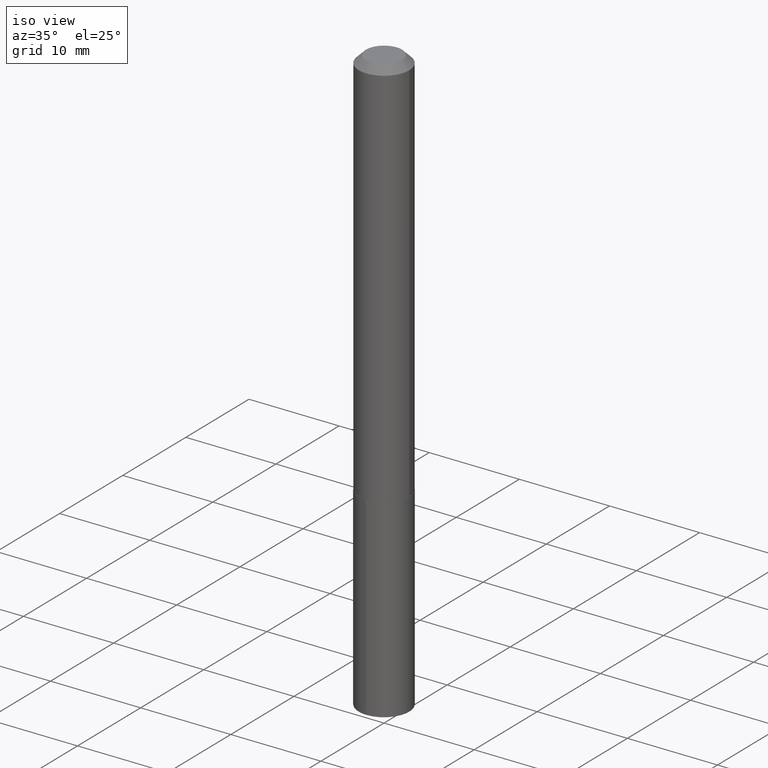
[diagram: clean part render]
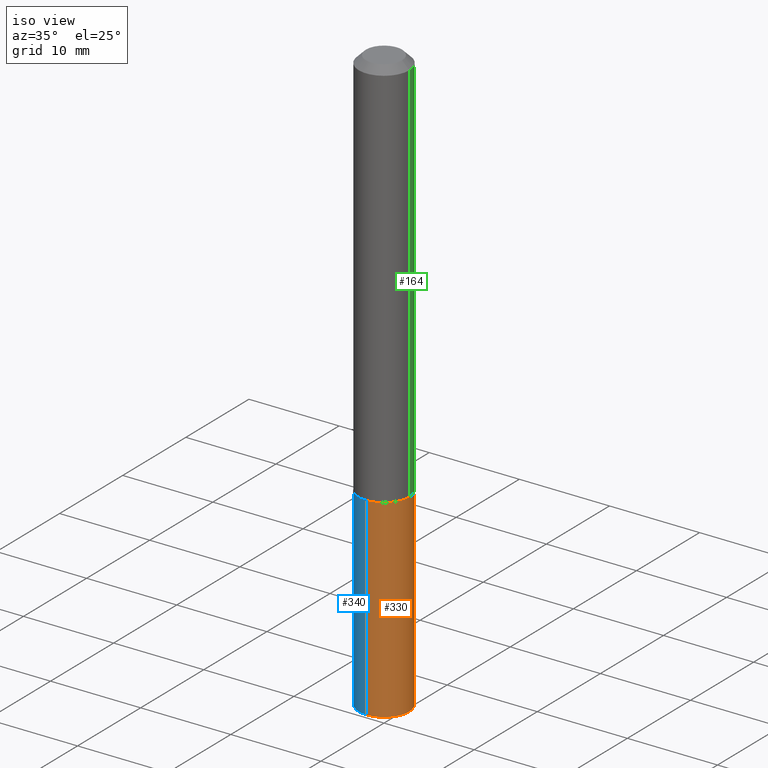
[diagram: same view with three faces highlighted in distinct colors, each labeled with its STEP entity id]
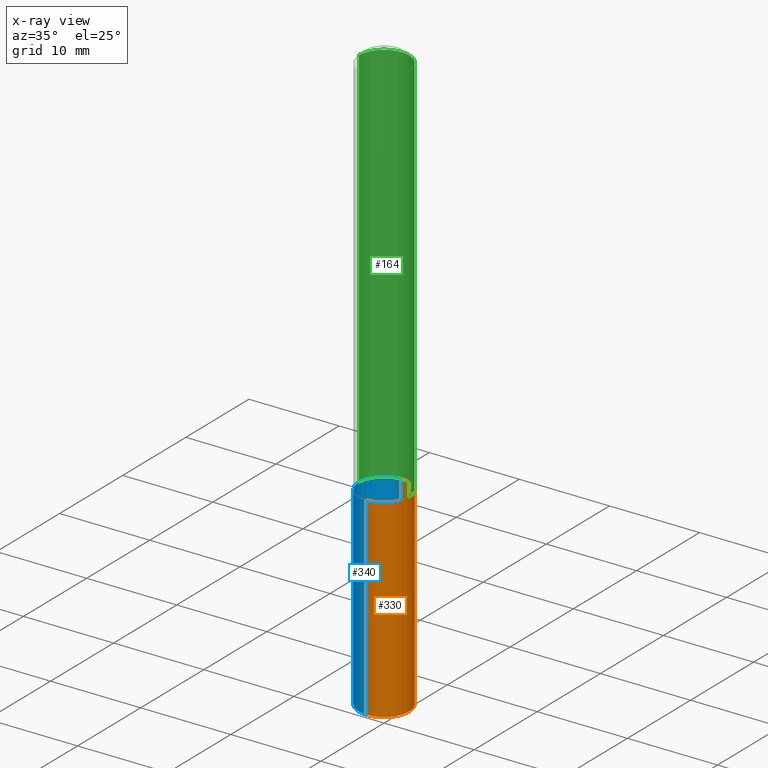
[diagram: x-ray of the same camera — body ghosted, the three highlighted faces saturated]
A machine part, iso view with three faces highlighted in distinct colors.
The next image is the same camera in x-ray (body ghosted, the three faces saturated) — at least one of them is partly hidden behind the body in this view.
Their STEP definitions:

[orange] entity #330 — the highlighted cylindrical surface (edge-blend (fillet) strip) has radius 2.8003 mm, axis along (-0, 0, 1).
#13 = CIRCLE ( 'NONE', #72, 0.1102500000000000008 ) ;
#18 = LINE ( 'NONE', #295, #43 ) ;
#23 = ORIENTED_EDGE ( 'NONE', *, *, #81, .T. ) ;
#25 = EDGE_CURVE ( 'NONE', #80, #269, #97, .T. ) ;
#35 = DIRECTION ( 'NONE',  ( -2.445383881849579817E-29, 3.491602955325256066E-15, 1.000000000000000000 ) ) ;
#40 = VECTOR ( 'NONE', #35, 39.37007874015748143 ) ;
#43 = VECTOR ( 'NONE', #384, 39.37007874015748143 ) ;
#46 = CARTESIAN_POINT ( 'NONE',  ( 7.833733661755731749E-16, 0.1102499999999940195, -1.716500000000000137 ) ) ;
#55 = ORIENTED_EDGE ( 'NONE', *, *, #25, .T. ) ;
#71 = AXIS2_PLACEMENT_3D ( 'NONE', #336, #163, #89 ) ;
#72 = AXIS2_PLACEMENT_3D ( 'NONE', #162, #255, #314 ) ;
#80 = VERTEX_POINT ( 'NONE', #99 ) ;
#81 = EDGE_CURVE ( 'NONE', #269, #356, #188, .T. ) ;
#89 = DIRECTION ( 'NONE',  ( -6.982962677686266711E-15, -1.000000000000000000, 4.955733321839933614E-15 ) ) ;
#97 = CIRCLE ( 'NONE', #71, 0.1102500000000000008 ) ;
#99 = CARTESIAN_POINT ( 'NONE',  ( -7.698716352148479695E-16, -0.1102500000000089381, -2.563638308526090981 ) ) ;
#104 = CARTESIAN_POINT ( 'NONE',  ( 4.197647205816786480E-29, -5.993127718124259199E-15, -1.716499999999999915 ) ) ;
#162 = CARTESIAN_POINT ( 'NONE',  ( 4.197647205816786480E-29, -5.993127718124259199E-15, -1.716499999999999915 ) ) ;
#163 = DIRECTION ( 'NONE',  ( -2.445383881849579817E-29, 3.491602955325256066E-15, 1.000000000000000000 ) ) ;
#188 = LINE ( 'NONE', #191, #40 ) ;
#191 = CARTESIAN_POINT ( 'NONE',  ( 7.833733661755523687E-16, 0.1102499999999940195, -1.716500000000000137 ) ) ;
#203 = DIRECTION ( 'NONE',  ( -2.445383881849579817E-29, 3.491602955325256066E-15, 1.000000000000000000 ) ) ;
#214 = AXIS2_PLACEMENT_3D ( 'NONE', #104, #203, #287 ) ;
#225 = EDGE_CURVE ( 'NONE', #80, #251, #18, .T. ) ;
#251 = VERTEX_POINT ( 'NONE', #258 ) ;
#255 = DIRECTION ( 'NONE',  ( -2.445383881849579817E-29, 3.491602955325256066E-15, 1.000000000000000000 ) ) ;
#258 = CARTESIAN_POINT ( 'NONE',  ( -7.698716352148689729E-16, -0.1102500000000059960, -1.716499999999999471 ) ) ;
#259 = CARTESIAN_POINT ( 'NONE',  ( 7.833733661755730763E-16, 0.1102499999999910357, -2.563638308526091869 ) ) ;
#266 = ORIENTED_EDGE ( 'NONE', *, *, #225, .F. ) ;
#269 = VERTEX_POINT ( 'NONE', #259 ) ;
#271 = ORIENTED_EDGE ( 'NONE', *, *, #324, .F. ) ;
#287 = DIRECTION ( 'NONE',  ( -6.982962677686266711E-15, -1.000000000000000000, 2.477866660919966807E-15 ) ) ;
#295 = CARTESIAN_POINT ( 'NONE',  ( -7.698716352148689729E-16, -0.1102500000000059960, -1.716499999999999471 ) ) ;
#314 = DIRECTION ( 'NONE',  ( -6.982962677686266711E-15, -1.000000000000000000, 2.477866660919966807E-15 ) ) ;
#324 = EDGE_CURVE ( 'NONE', #251, #356, #13, .T. ) ;
#330 = ADVANCED_FACE ( 'NONE', ( #352 ), #350, .T. ) ;
#333 = EDGE_LOOP ( 'NONE', ( #55, #23, #271, #266 ) ) ;
#336 = CARTESIAN_POINT ( 'NONE',  ( 6.269225571183806449E-29, -8.950998339743198170E-15, -2.563638308526091425 ) ) ;
#350 = CYLINDRICAL_SURFACE ( 'NONE', #214, 0.1102500000000000008 ) ;
#352 = FACE_OUTER_BOUND ( 'NONE', #333, .T. ) ;
#356 = VERTEX_POINT ( 'NONE', #46 ) ;
#384 = DIRECTION ( 'NONE',  ( -2.445383881849579817E-29, 3.491602955325256066E-15, 1.000000000000000000 ) ) ;

[blue] entity #340 — the highlighted cylindrical surface (edge-blend (fillet) strip) has radius 2.8003 mm, axis along (-0, 0, 1).
#17 = DIRECTION ( 'NONE',  ( -2.445383881849579817E-29, 3.491602955325256066E-15, 1.000000000000000000 ) ) ;
#18 = LINE ( 'NONE', #295, #43 ) ;
#19 = CARTESIAN_POINT ( 'NONE',  ( 4.197647205816786480E-29, -5.993127718124259199E-15, -1.716499999999999915 ) ) ;
#21 = AXIS2_PLACEMENT_3D ( 'NONE', #19, #17, #133 ) ;
#24 = DIRECTION ( 'NONE',  ( -2.445383881849579817E-29, 3.491602955325256066E-15, 1.000000000000000000 ) ) ;
#35 = DIRECTION ( 'NONE',  ( -2.445383881849579817E-29, 3.491602955325256066E-15, 1.000000000000000000 ) ) ;
#40 = VECTOR ( 'NONE', #35, 39.37007874015748143 ) ;
#43 = VECTOR ( 'NONE', #384, 39.37007874015748143 ) ;
#46 = CARTESIAN_POINT ( 'NONE',  ( 7.833733661755731749E-16, 0.1102499999999940195, -1.716500000000000137 ) ) ;
#77 = CYLINDRICAL_SURFACE ( 'NONE', #110, 0.1102500000000000008 ) ;
#80 = VERTEX_POINT ( 'NONE', #99 ) ;
#81 = EDGE_CURVE ( 'NONE', #269, #356, #188, .T. ) ;
#99 = CARTESIAN_POINT ( 'NONE',  ( -7.698716352148479695E-16, -0.1102500000000089381, -2.563638308526090981 ) ) ;
#110 = AXIS2_PLACEMENT_3D ( 'NONE', #262, #294, #382 ) ;
#111 = ORIENTED_EDGE ( 'NONE', *, *, #81, .F. ) ;
#114 = ORIENTED_EDGE ( 'NONE', *, *, #277, .T. ) ;
#133 = DIRECTION ( 'NONE',  ( -6.982962677686266711E-15, -1.000000000000000000, 2.477866660919966807E-15 ) ) ;
#141 = DIRECTION ( 'NONE',  ( -6.982962677686266711E-15, -1.000000000000000000, 4.955733321839933614E-15 ) ) ;
#188 = LINE ( 'NONE', #191, #40 ) ;
#191 = CARTESIAN_POINT ( 'NONE',  ( 7.833733661755523687E-16, 0.1102499999999940195, -1.716500000000000137 ) ) ;
#206 = EDGE_LOOP ( 'NONE', ( #111, #114, #331, #302 ) ) ;
#225 = EDGE_CURVE ( 'NONE', #80, #251, #18, .T. ) ;
#251 = VERTEX_POINT ( 'NONE', #258 ) ;
#258 = CARTESIAN_POINT ( 'NONE',  ( -7.698716352148689729E-16, -0.1102500000000059960, -1.716499999999999471 ) ) ;
#259 = CARTESIAN_POINT ( 'NONE',  ( 7.833733661755730763E-16, 0.1102499999999910357, -2.563638308526091869 ) ) ;
#262 = CARTESIAN_POINT ( 'NONE',  ( 4.197647205816786480E-29, -5.993127718124259199E-15, -1.716499999999999915 ) ) ;
#268 = AXIS2_PLACEMENT_3D ( 'NONE', #379, #24, #141 ) ;
#269 = VERTEX_POINT ( 'NONE', #259 ) ;
#277 = EDGE_CURVE ( 'NONE', #269, #80, #317, .T. ) ;
#293 = CIRCLE ( 'NONE', #21, 0.1102500000000000008 ) ;
#294 = DIRECTION ( 'NONE',  ( -2.445383881849579817E-29, 3.491602955325256066E-15, 1.000000000000000000 ) ) ;
#295 = CARTESIAN_POINT ( 'NONE',  ( -7.698716352148689729E-16, -0.1102500000000059960, -1.716499999999999471 ) ) ;
#302 = ORIENTED_EDGE ( 'NONE', *, *, #375, .F. ) ;
#317 = CIRCLE ( 'NONE', #268, 0.1102500000000000008 ) ;
#331 = ORIENTED_EDGE ( 'NONE', *, *, #225, .T. ) ;
#340 = ADVANCED_FACE ( 'NONE', ( #377 ), #77, .T. ) ;
#356 = VERTEX_POINT ( 'NONE', #46 ) ;
#375 = EDGE_CURVE ( 'NONE', #356, #251, #293, .T. ) ;
#377 = FACE_OUTER_BOUND ( 'NONE', #206, .T. ) ;
#379 = CARTESIAN_POINT ( 'NONE',  ( 6.269225571183806449E-29, -8.950998339743198170E-15, -2.563638308526091425 ) ) ;
#382 = DIRECTION ( 'NONE',  ( -6.982962677686266711E-15, -1.000000000000000000, 2.477866660919966807E-15 ) ) ;
#384 = DIRECTION ( 'NONE',  ( -2.445383881849579817E-29, 3.491602955325256066E-15, 1.000000000000000000 ) ) ;

[green] entity #164 — the highlighted cylindrical surface (edge-blend (fillet) strip) has radius 2.8004 mm, axis along (-0, 0, 1).
#33 = VERTEX_POINT ( 'NONE', #130 ) ;
#74 = DIRECTION ( 'NONE',  ( -2.445468806185136877E-29, 3.491481338843145188E-15, 1.000000000000000000 ) ) ;
#75 = CARTESIAN_POINT ( 'NONE',  ( -0.1102500000000001118, 7.833733661755112493E-16, -5.423125937006039074E-30 ) ) ;
#76 = VECTOR ( 'NONE', #322, 39.37007874015748143 ) ;
#79 = FACE_OUTER_BOUND ( 'NONE', #248, .T. ) ;
#83 = VERTEX_POINT ( 'NONE', #246 ) ;
#95 = VERTEX_POINT ( 'NONE', #198 ) ;
#100 = LINE ( 'NONE', #230, #200 ) ;
#101 = CYLINDRICAL_SURFACE ( 'NONE', #224, 0.1102500000000001118 ) ;
#125 = CIRCLE ( 'NONE', #348, 0.1102500000000002089 ) ;
#130 = CARTESIAN_POINT ( 'NONE',  ( 0.1102500000000002089, -6.761253612669749957E-15, -1.715999999999999970 ) ) ;
#137 = DIRECTION ( 'NONE',  ( 1.000000000000000000, -6.982962677686265133E-15, 0.000000000000000000 ) ) ;
#145 = AXIS2_PLACEMENT_3D ( 'NONE', #194, #342, #160 ) ;
#151 = EDGE_CURVE ( 'NONE', #33, #83, #125, .T. ) ;
#160 = DIRECTION ( 'NONE',  ( 1.000000000000000000, -6.982962677686266711E-15, 0.000000000000000000 ) ) ;
#164 = ADVANCED_FACE ( 'NONE', ( #79 ), #101, .T. ) ;
#169 = CARTESIAN_POINT ( 'NONE',  ( 0.000000000000000000, 0.000000000000000000, 0.000000000000000000 ) ) ;
#172 = CARTESIAN_POINT ( 'NONE',  ( 4.196424471413694799E-29, -5.991381977454837695E-15, -1.715999999999999970 ) ) ;
#181 = ORIENTED_EDGE ( 'NONE', *, *, #308, .F. ) ;
#184 = CARTESIAN_POINT ( 'NONE',  ( 0.1102500000000000008, -8.789804270537599818E-16, -0.03125000000000021511 ) ) ;
#194 = CARTESIAN_POINT ( 'NONE',  ( 7.642090019328603538E-31, -1.091087918388490390E-16, -0.03125000000000021511 ) ) ;
#198 = CARTESIAN_POINT ( 'NONE',  ( -0.1102500000000000008, -2.266872018471330867E-15, -0.03125000000000021511 ) ) ;
#200 = VECTOR ( 'NONE', #74, 39.37007874015748143 ) ;
#208 = DIRECTION ( 'NONE',  ( -2.445468806185136597E-29, 3.491481338843145583E-15, 1.000000000000000000 ) ) ;
#224 = AXIS2_PLACEMENT_3D ( 'NONE', #169, #236, #355 ) ;
#230 = CARTESIAN_POINT ( 'NONE',  ( 0.1102500000000001118, -7.698716352149116700E-16, 5.375984895315024509E-30 ) ) ;
#236 = DIRECTION ( 'NONE',  ( -2.445468806185136597E-29, 3.491481338843145583E-15, 1.000000000000000000 ) ) ;
#239 = ORIENTED_EDGE ( 'NONE', *, *, #151, .T. ) ;
#246 = CARTESIAN_POINT ( 'NONE',  ( -0.1102500000000002089, -5.208008611279325953E-15, -1.715999999999999970 ) ) ;
#248 = EDGE_LOOP ( 'NONE', ( #239, #359, #181, #385 ) ) ;
#300 = EDGE_CURVE ( 'NONE', #83, #95, #347, .T. ) ;
#308 = EDGE_CURVE ( 'NONE', #386, #95, #344, .T. ) ;
#322 = DIRECTION ( 'NONE',  ( -2.445468806185136877E-29, 3.491481338843145188E-15, 1.000000000000000000 ) ) ;
#342 = DIRECTION ( 'NONE',  ( -2.445468806185136597E-29, 3.491481338843145583E-15, 1.000000000000000000 ) ) ;
#344 = CIRCLE ( 'NONE', #145, 0.1102500000000000008 ) ;
#347 = LINE ( 'NONE', #75, #76 ) ;
#348 = AXIS2_PLACEMENT_3D ( 'NONE', #172, #208, #137 ) ;
#353 = EDGE_CURVE ( 'NONE', #33, #386, #100, .T. ) ;
#355 = DIRECTION ( 'NONE',  ( 1.000000000000000000, -6.982962677686266711E-15, 4.876176775795935793E-29 ) ) ;
#359 = ORIENTED_EDGE ( 'NONE', *, *, #300, .T. ) ;
#385 = ORIENTED_EDGE ( 'NONE', *, *, #353, .F. ) ;
#386 = VERTEX_POINT ( 'NONE', #184 ) ;